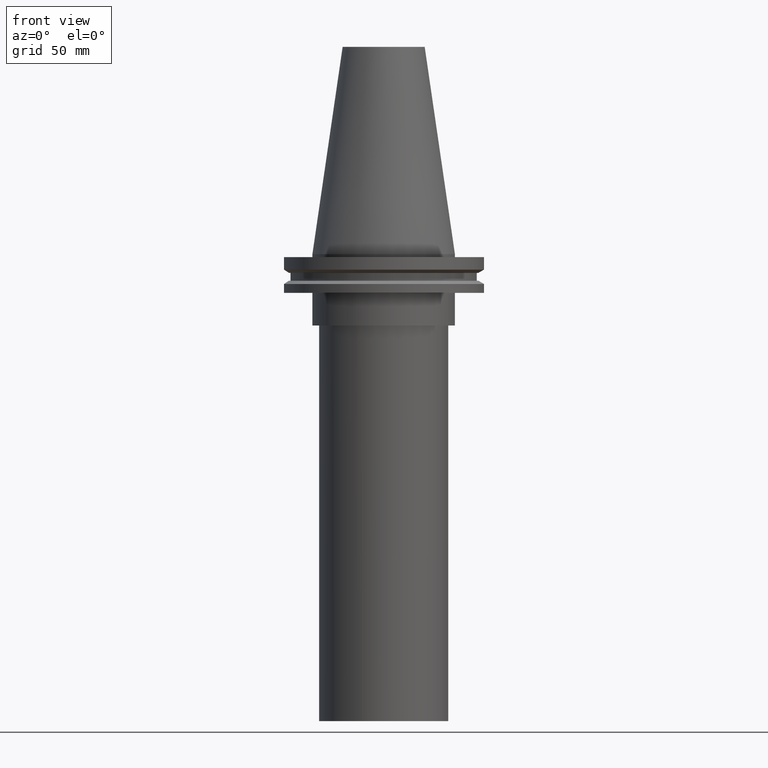
[diagram: clean part render]
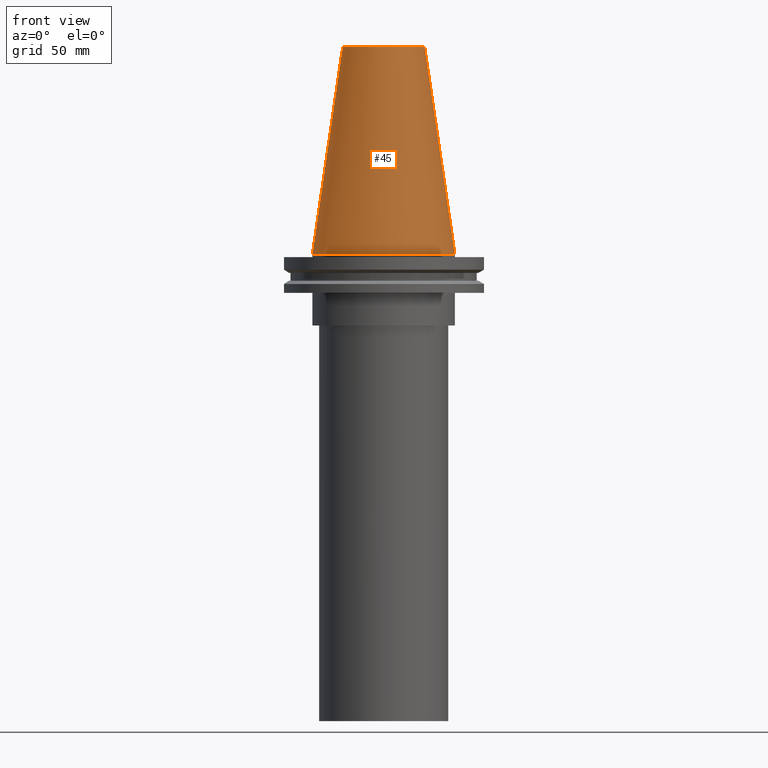
[diagram: same view with one face highlighted and labeled with its STEP entity id]
A machine part, front view. The second image highlights one B-rep face of the part: STEP entity #45.
In plain terms, the highlighted conical surface has half-angle 8.297 deg.
Its self-contained STEP definition (entity closure, byte-faithful):
#12 = CIRCLE ( 'NONE', #310, 34.92499999999999005 ) ;
#23 = AXIS2_PLACEMENT_3D ( 'NONE', #260, #390, #118 ) ;
#25 = EDGE_CURVE ( 'NONE', #292, #292, #99, .T. ) ;
#45 = ADVANCED_FACE ( 'NONE', ( #86, #208 ), #58, .T. ) ;
#52 = AXIS2_PLACEMENT_3D ( 'NONE', #57, #177, #201 ) ;
#57 = CARTESIAN_POINT ( 'NONE',  ( 0.000000000000000000, 0.000000000000000000, 0.000000000000000000 ) ) ;
#58 = CONICAL_SURFACE ( 'NONE', #52, 34.92499999999999005, 0.1448138465474119452 ) ;
#63 = VERTEX_POINT ( 'NONE', #160 ) ;
#71 = EDGE_LOOP ( 'NONE', ( #351 ) ) ;
#73 = ORIENTED_EDGE ( 'NONE', *, *, #25, .F. ) ;
#86 = FACE_BOUND ( 'NONE', #221, .T. ) ;
#99 = CIRCLE ( 'NONE', #23, 20.10819343178871321 ) ;
#118 = DIRECTION ( 'NONE',  ( 1.000000000000000000, 0.000000000000000000, 0.000000000000000000 ) ) ;
#160 = CARTESIAN_POINT ( 'NONE',  ( 34.92499999999999005, 0.000000000000000000, 0.000000000000000000 ) ) ;
#177 = DIRECTION ( 'NONE',  ( 0.000000000000000000, 0.000000000000000000, -1.000000000000000000 ) ) ;
#180 = CARTESIAN_POINT ( 'NONE',  ( 0.000000000000000000, 0.000000000000000000, 0.000000000000000000 ) ) ;
#185 = DIRECTION ( 'NONE',  ( 1.000000000000000000, 0.000000000000000000, 0.000000000000000000 ) ) ;
#201 = DIRECTION ( 'NONE',  ( -1.000000000000000000, 0.000000000000000000, 0.000000000000000000 ) ) ;
#208 = FACE_OUTER_BOUND ( 'NONE', #71, .T. ) ;
#221 = EDGE_LOOP ( 'NONE', ( #73 ) ) ;
#260 = CARTESIAN_POINT ( 'NONE',  ( 0.000000000000000000, 0.000000000000000000, 101.5999999999999801 ) ) ;
#262 = CARTESIAN_POINT ( 'NONE',  ( 20.10819343178871321, 0.000000000000000000, 101.5999999999999801 ) ) ;
#292 = VERTEX_POINT ( 'NONE', #262 ) ;
#310 = AXIS2_PLACEMENT_3D ( 'NONE', #180, #332, #185 ) ;
#332 = DIRECTION ( 'NONE',  ( -0.000000000000000000, -0.000000000000000000, 1.000000000000000000 ) ) ;
#333 = EDGE_CURVE ( 'NONE', #63, #63, #12, .T. ) ;
#351 = ORIENTED_EDGE ( 'NONE', *, *, #333, .T. ) ;
#390 = DIRECTION ( 'NONE',  ( -0.000000000000000000, -0.000000000000000000, 1.000000000000000000 ) ) ;